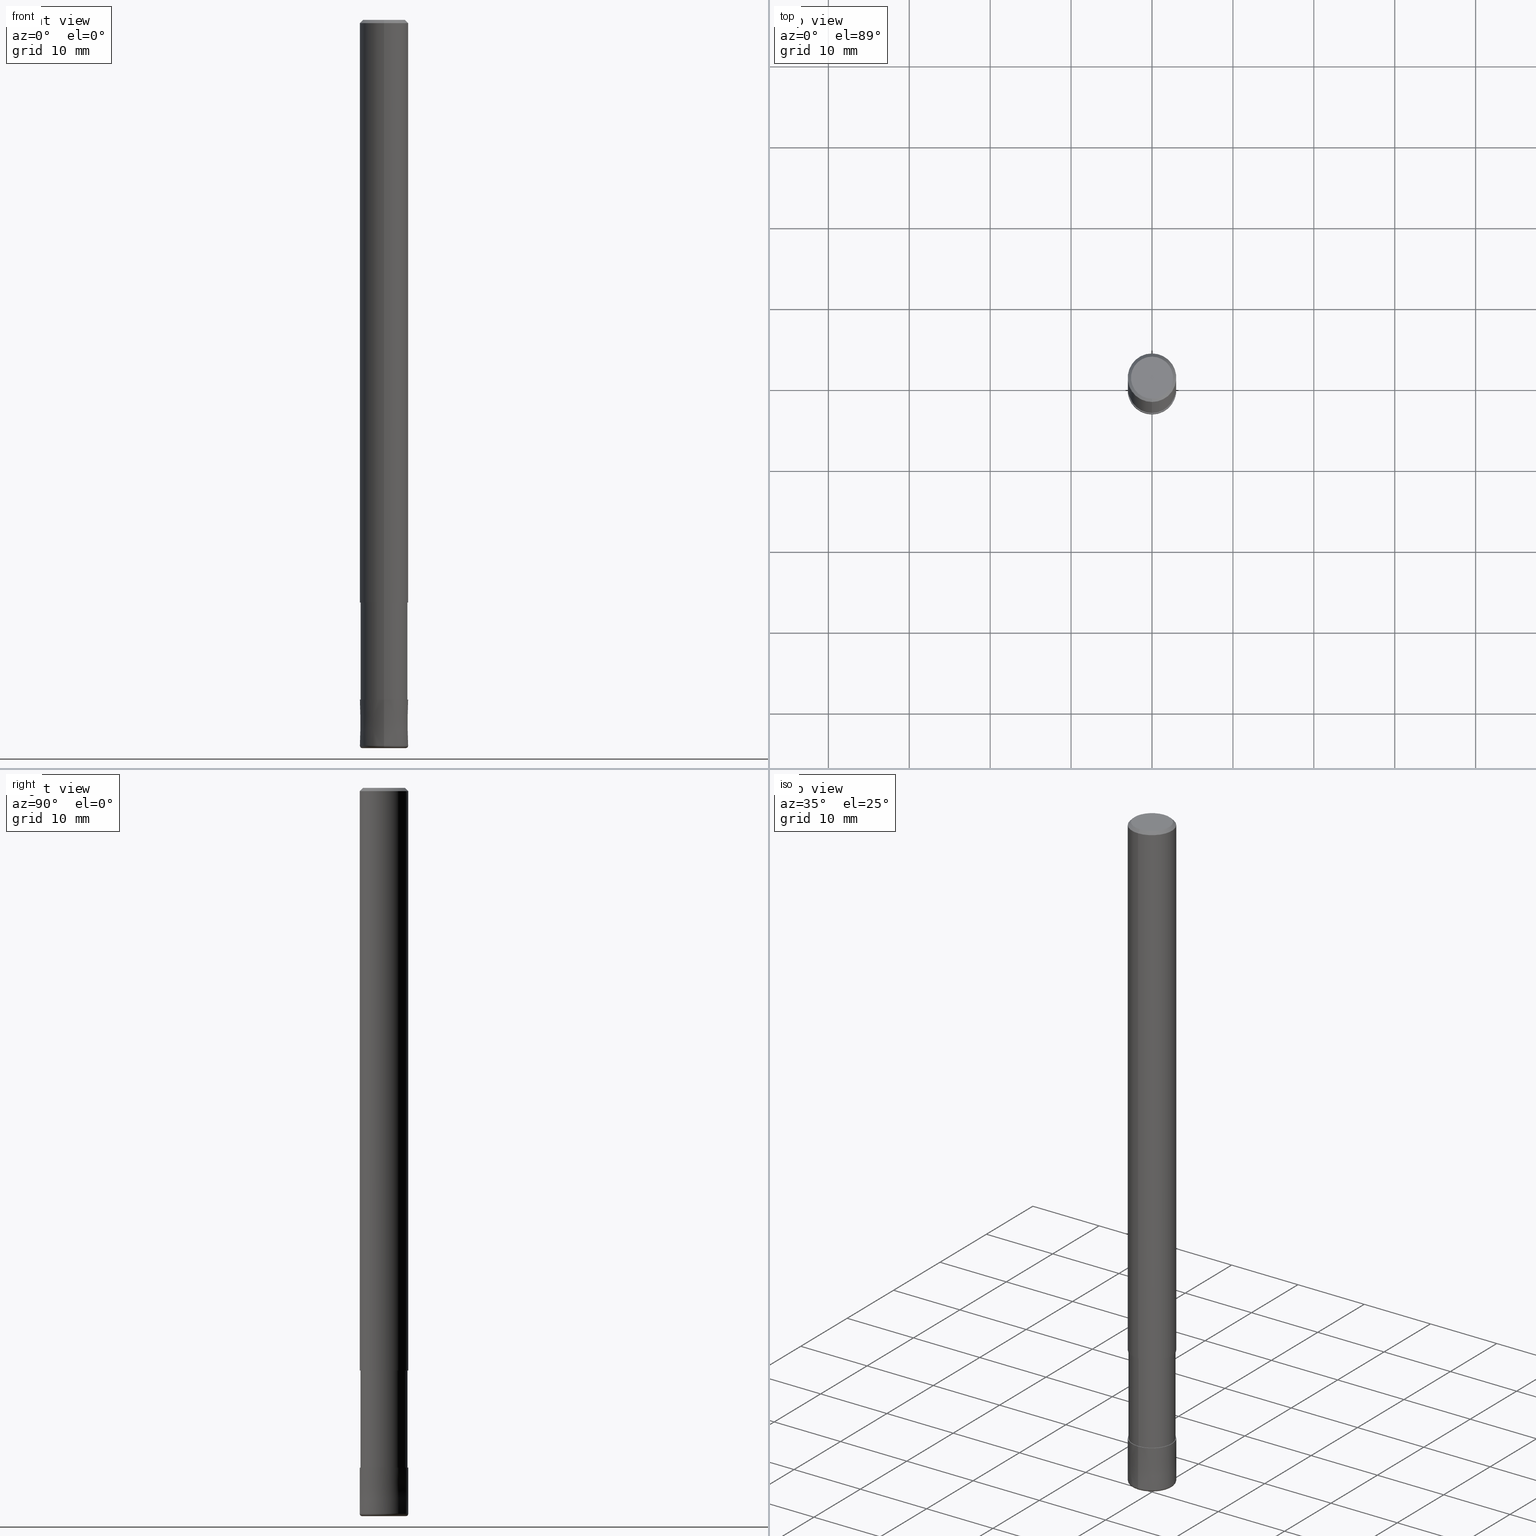
[diagram: canonical four-view strip — front | top / right | iso, engineering-drawing reading convention]
A machine part, canonical four-view strip (front | top / right | iso — engineering-drawing reading convention). The complete STEP part file that produces these views, byte-faithful:
ISO-10303-21;
HEADER;
FILE_DESCRIPTION(('no description'),'unknown implementation level');
FILE_NAME('CRRS4060-03-18-Huellk.stp','  ',('CIMSOURCE GmbH'),('CADClick - KiM GmbH - www.kimweb.de'),'unknown preprocess','ACIS','unknown authorization');
FILE_SCHEMA(('automotive_design'));
ENDSEC;
DATA;
#1=MECHANICAL_DESIGN_GEOMETRIC_PRESENTATION_REPRESENTATION(' ',(#14,#15,#16,#17,#18,#19,#20,#21,#22,#23,#24,#25,#26,#27,#28,#29,#30,#31,#32,#33,#34,#35,#36,#37,#38,#39,#40,#41,#42,#43,#44,#45,#46,#47,#48,#49,#50,#51,#52,#53,#54,#55,#56,#57,#58,#59,#60,#61,#62,#63,#64,#65,#66,#67,#68,#69,#70,#71,#72),#10);
#2=PRODUCT_DEFINITION_CONTEXT('',#73,'design');
#3=APPLICATION_PROTOCOL_DEFINITION('INTERNATIONAL STANDARD','automotive_design',1994,#73);
#4=PRODUCT_CATEGORY_RELATIONSHIP('NONE','NONE',#74,#75);
#5=SHAPE_DEFINITION_REPRESENTATION(#76,#77);
#6=PRODUCT_DEFINITION_CONTEXT('',#78,'design');
#7=APPLICATION_PROTOCOL_DEFINITION('INTERNATIONAL STANDARD','automotive_design',1994,#78);
#8=PRODUCT_CATEGORY_RELATIONSHIP('NONE','NONE',#79,#80);
#9=SHAPE_DEFINITION_REPRESENTATION(#81,#82);
#10= (GEOMETRIC_REPRESENTATION_CONTEXT(3)GLOBAL_UNCERTAINTY_ASSIGNED_CONTEXT((#85))GLOBAL_UNIT_ASSIGNED_CONTEXT((#87,#88,#89))REPRESENTATION_CONTEXT('NONE','WORKSPACE'));
#14=STYLED_ITEM('',(#91),#92);
#15=STYLED_ITEM('',(#93),#94);
#16=STYLED_ITEM('',(#95),#96);
#17=STYLED_ITEM('',(#97),#98);
#18=STYLED_ITEM('',(#99),#100);
#19=STYLED_ITEM('',(#101),#102);
#20=STYLED_ITEM('',(#103),#104);
#21=STYLED_ITEM('',(#105),#106);
#22=STYLED_ITEM('',(#107),#108);
#23=STYLED_ITEM('',(#109),#110);
#24=STYLED_ITEM('',(#111),#112);
#25=STYLED_ITEM('',(#113),#114);
#26=STYLED_ITEM('',(#115),#116);
#27=STYLED_ITEM('',(#117),#118);
#28=STYLED_ITEM('',(#119),#120);
#29=STYLED_ITEM('',(#121),#122);
#30=STYLED_ITEM('',(#123),#124);
#31=STYLED_ITEM('',(#125),#126);
#32=STYLED_ITEM('',(#127),#128);
#33=STYLED_ITEM('',(#129),#130);
#34=STYLED_ITEM('',(#131),#132);
#35=STYLED_ITEM('',(#133),#134);
#36=STYLED_ITEM('',(#135),#136);
#37=STYLED_ITEM('',(#137),#138);
#38=STYLED_ITEM('',(#139),#140);
#39=STYLED_ITEM('',(#141),#142);
#40=STYLED_ITEM('',(#143),#144);
#41=STYLED_ITEM('',(#145),#146);
#42=STYLED_ITEM('',(#147),#148);
#43=STYLED_ITEM('',(#149),#150);
#44=STYLED_ITEM('',(#151),#152);
#45=STYLED_ITEM('',(#153),#154);
#46=STYLED_ITEM('',(#155),#156);
#47=STYLED_ITEM('',(#157),#158);
#48=STYLED_ITEM('',(#159),#160);
#49=STYLED_ITEM('',(#161),#162);
#50=STYLED_ITEM('',(#163),#164);
#51=STYLED_ITEM('',(#165),#166);
#52=STYLED_ITEM('',(#167),#168);
#53=STYLED_ITEM('',(#169),#170);
#54=STYLED_ITEM('',(#171),#172);
#55=STYLED_ITEM('',(#173),#174);
#56=STYLED_ITEM('',(#175),#176);
#57=STYLED_ITEM('',(#177),#178);
#58=STYLED_ITEM('',(#179),#180);
#59=STYLED_ITEM('',(#181),#182);
#60=STYLED_ITEM('',(#183),#184);
#61=STYLED_ITEM('',(#185),#186);
#62=STYLED_ITEM('',(#187),#188);
#63=STYLED_ITEM('',(#189),#190);
#64=STYLED_ITEM('',(#191),#192);
#65=STYLED_ITEM('',(#193),#194);
#66=STYLED_ITEM('',(#195),#196);
#67=STYLED_ITEM('',(#197),#198);
#68=STYLED_ITEM('',(#199),#200);
#69=STYLED_ITEM('',(#201),#202);
#70=STYLED_ITEM('',(#203),#204);
#71=STYLED_ITEM('',(#205),#206);
#72=STYLED_ITEM('',(#207),#208);
#73=APPLICATION_CONTEXT(' ');
#74=PRODUCT_CATEGORY('part','NONE');
#75=PRODUCT_RELATED_PRODUCT_CATEGORY('detail',' ',(#209));
#76=PRODUCT_DEFINITION_SHAPE('NONE','NONE',#210);
#77=ADVANCED_BREP_SHAPE_REPRESENTATION('1',(#92,#211),#10);
#78=APPLICATION_CONTEXT(' ');
#79=PRODUCT_CATEGORY('part','NONE');
#80=PRODUCT_RELATED_PRODUCT_CATEGORY('detail',' ',(#212));
#81=PRODUCT_DEFINITION_SHAPE('NONE','NONE',#213);
#82=ADVANCED_BREP_SHAPE_REPRESENTATION('2',(#194,#214),#10);
#85=UNCERTAINTY_MEASURE_WITH_UNIT(LENGTH_MEASURE(1.0E-006),#87,'','');
#87= (CONVERSION_BASED_UNIT('MILLIMETRE',#217)LENGTH_UNIT()NAMED_UNIT(#220));
#88= (NAMED_UNIT(#222)PLANE_ANGLE_UNIT()SI_UNIT($,.RADIAN.));
#89= (NAMED_UNIT(#222)SOLID_ANGLE_UNIT()SI_UNIT($,.STERADIAN.));
#91=PRESENTATION_STYLE_ASSIGNMENT((#228));
#92=MANIFOLD_SOLID_BREP('1',#229);
#93=PRESENTATION_STYLE_ASSIGNMENT((#230));
#94=EDGE_CURVE('',#104,#192,#231,.T.);
#95=PRESENTATION_STYLE_ASSIGNMENT((#232));
#96=VERTEX_POINT('',#233);
#97=PRESENTATION_STYLE_ASSIGNMENT((#234));
#98=ADVANCED_FACE('',(#235),#236,.T.);
#99=PRESENTATION_STYLE_ASSIGNMENT((#237));
#100=EDGE_CURVE('',#206,#144,#238,.T.);
#101=PRESENTATION_STYLE_ASSIGNMENT((#239));
#102=EDGE_CURVE('',#174,#164,#240,.T.);
#103=PRESENTATION_STYLE_ASSIGNMENT((#241));
#104=VERTEX_POINT('',#242);
#105=PRESENTATION_STYLE_ASSIGNMENT((#243));
#106=ADVANCED_FACE('',(#244),#245,.T.);
#107=PRESENTATION_STYLE_ASSIGNMENT((#246));
#108=ADVANCED_FACE('',(#247),#248,.T.);
#109=PRESENTATION_STYLE_ASSIGNMENT((#249));
#110=ADVANCED_FACE('',(#250,#251),#252,.T.);
#111=PRESENTATION_STYLE_ASSIGNMENT((#253));
#112=EDGE_CURVE('',#166,#186,#254,.T.);
#113=PRESENTATION_STYLE_ASSIGNMENT((#255));
#114=ADVANCED_FACE('',(#256),#257,.T.);
#115=PRESENTATION_STYLE_ASSIGNMENT((#258));
#116=EDGE_CURVE('',#164,#206,#259,.T.);
#117=PRESENTATION_STYLE_ASSIGNMENT((#260));
#118=ADVANCED_FACE('',(#261),#262,.T.);
#119=PRESENTATION_STYLE_ASSIGNMENT((#263));
#120=EDGE_CURVE('',#150,#104,#264,.T.);
#121=PRESENTATION_STYLE_ASSIGNMENT((#265));
#122=ADVANCED_FACE('',(#266),#267,.T.);
#123=PRESENTATION_STYLE_ASSIGNMENT((#268));
#124=ADVANCED_FACE('',(#269),#270,.T.);
#125=PRESENTATION_STYLE_ASSIGNMENT((#271));
#126=VERTEX_POINT('',#272);
#127=PRESENTATION_STYLE_ASSIGNMENT((#273));
#128=EDGE_CURVE('',#190,#158,#274,.T.);
#129=PRESENTATION_STYLE_ASSIGNMENT((#275));
#130=EDGE_CURVE('',#186,#166,#276,.T.);
#131=PRESENTATION_STYLE_ASSIGNMENT((#277));
#132=EDGE_CURVE('',#188,#192,#278,.T.);
#133=PRESENTATION_STYLE_ASSIGNMENT((#279));
#134=EDGE_CURVE('',#140,#166,#280,.T.);
#135=PRESENTATION_STYLE_ASSIGNMENT((#281));
#136=EDGE_CURVE('',#164,#174,#282,.T.);
#137=PRESENTATION_STYLE_ASSIGNMENT((#283));
#138=EDGE_CURVE('',#202,#96,#284,.T.);
#139=PRESENTATION_STYLE_ASSIGNMENT((#285));
#140=VERTEX_POINT('',#286);
#141=PRESENTATION_STYLE_ASSIGNMENT((#287));
#142=EDGE_CURVE('',#104,#150,#288,.T.);
#143=PRESENTATION_STYLE_ASSIGNMENT((#289));
#144=VERTEX_POINT('',#290);
#145=PRESENTATION_STYLE_ASSIGNMENT((#291));
#146=EDGE_CURVE('',#144,#190,#292,.T.);
#147=PRESENTATION_STYLE_ASSIGNMENT((#293));
#148=EDGE_CURVE('',#202,#140,#294,.T.);
#149=PRESENTATION_STYLE_ASSIGNMENT((#295));
#150=VERTEX_POINT('',#296);
#151=PRESENTATION_STYLE_ASSIGNMENT((#297));
#152=EDGE_CURVE('',#158,#190,#298,.T.);
#153=PRESENTATION_STYLE_ASSIGNMENT((#299));
#154=EDGE_CURVE('',#96,#202,#300,.T.);
#155=PRESENTATION_STYLE_ASSIGNMENT((#301));
#156=ADVANCED_FACE('',(#302),#303,.T.);
#157=PRESENTATION_STYLE_ASSIGNMENT((#304));
#158=VERTEX_POINT('',#305);
#159=PRESENTATION_STYLE_ASSIGNMENT((#306));
#160=ADVANCED_FACE('',(#307),#308,.T.);
#161=PRESENTATION_STYLE_ASSIGNMENT((#309));
#162=ADVANCED_FACE('',(#310),#311,.T.);
#163=PRESENTATION_STYLE_ASSIGNMENT((#312));
#164=VERTEX_POINT('',#313);
#165=PRESENTATION_STYLE_ASSIGNMENT((#314));
#166=VERTEX_POINT('',#315);
#167=PRESENTATION_STYLE_ASSIGNMENT((#316));
#168=ADVANCED_FACE('',(#317),#318,.T.);
#169=PRESENTATION_STYLE_ASSIGNMENT((#319));
#170=EDGE_CURVE('',#144,#206,#320,.T.);
#171=PRESENTATION_STYLE_ASSIGNMENT((#321));
#172=EDGE_CURVE('',#158,#206,#322,.T.);
#173=PRESENTATION_STYLE_ASSIGNMENT((#323));
#174=VERTEX_POINT('',#324);
#175=PRESENTATION_STYLE_ASSIGNMENT((#325));
#176=EDGE_CURVE('',#188,#150,#326,.T.);
#177=PRESENTATION_STYLE_ASSIGNMENT((#327));
#178=EDGE_CURVE('',#126,#140,#328,.T.);
#179=PRESENTATION_STYLE_ASSIGNMENT((#329));
#180=EDGE_CURVE('',#192,#188,#330,.T.);
#181=PRESENTATION_STYLE_ASSIGNMENT((#331));
#182=ADVANCED_FACE('',(#332),#333,.T.);
#183=PRESENTATION_STYLE_ASSIGNMENT((#334));
#184=ADVANCED_FACE('',(#335),#336,.T.);
#185=PRESENTATION_STYLE_ASSIGNMENT((#337));
#186=VERTEX_POINT('',#338);
#187=PRESENTATION_STYLE_ASSIGNMENT((#339));
#188=VERTEX_POINT('',#340);
#189=PRESENTATION_STYLE_ASSIGNMENT((#341));
#190=VERTEX_POINT('',#342);
#191=PRESENTATION_STYLE_ASSIGNMENT((#343));
#192=VERTEX_POINT('',#344);
#193=PRESENTATION_STYLE_ASSIGNMENT((#345));
#194=MANIFOLD_SOLID_BREP('2',#346);
#195=PRESENTATION_STYLE_ASSIGNMENT((#347));
#196=EDGE_CURVE('',#144,#174,#348,.T.);
#197=PRESENTATION_STYLE_ASSIGNMENT((#349));
#198=EDGE_CURVE('',#140,#126,#350,.T.);
#199=PRESENTATION_STYLE_ASSIGNMENT((#351));
#200=EDGE_CURVE('',#186,#126,#352,.T.);
#201=PRESENTATION_STYLE_ASSIGNMENT((#353));
#202=VERTEX_POINT('',#354);
#203=PRESENTATION_STYLE_ASSIGNMENT((#355));
#204=EDGE_CURVE('',#126,#96,#356,.T.);
#205=PRESENTATION_STYLE_ASSIGNMENT((#357));
#206=VERTEX_POINT('',#358);
#207=PRESENTATION_STYLE_ASSIGNMENT((#359));
#208=ADVANCED_FACE('',(#360),#361,.T.);
#209=PRODUCT('1','1','PART-1-DESC',(#362));
#210=PRODUCT_DEFINITION('NONE','NONE',#363,#2);
#211=AXIS2_PLACEMENT_3D('',#364,#365,#366);
#212=PRODUCT('2','2','PART-2-DESC',(#367));
#213=PRODUCT_DEFINITION('NONE','NONE',#368,#6);
#214=AXIS2_PLACEMENT_3D('',#369,#370,#371);
#217=LENGTH_MEASURE_WITH_UNIT(LENGTH_MEASURE(1.0),#372);
#220=DIMENSIONAL_EXPONENTS(1.0,0.0,0.0,0.0,0.0,0.0,0.0);
#222=DIMENSIONAL_EXPONENTS(0.0,0.0,0.0,0.0,0.0,0.0,0.0);
#228=SURFACE_STYLE_USAGE(.BOTH.,#373);
#229=CLOSED_SHELL('',(#162,#106,#184,#110,#124,#156,#118,#114,#182));
#230=CURVE_STYLE('',#374,POSITIVE_LENGTH_MEASURE(1.0E-006),#375);
#231=LINE('',#376,#377);
#232=POINT_STYLE(' ',#378,POSITIVE_LENGTH_MEASURE(1.0E-006),#379);
#233=CARTESIAN_POINT('',(0.0,3.0,-72.0));
#234=SURFACE_STYLE_USAGE(.BOTH.,#380);
#235=FACE_OUTER_BOUND('',#381,.T.);
#236=PLANE('',#382);
#237=CURVE_STYLE('',#383,POSITIVE_LENGTH_MEASURE(1.0E-006),#384);
#238=CIRCLE('',#385,3.0);
#239=CURVE_STYLE('',#386,POSITIVE_LENGTH_MEASURE(1.0E-006),#387);
#240=CIRCLE('',#388,2.9999);
#241=POINT_STYLE(' ',#389,POSITIVE_LENGTH_MEASURE(1.0E-006),#390);
#242=CARTESIAN_POINT('',(0.0,2.90995,-72.0));
#243=SURFACE_STYLE_USAGE(.BOTH.,#391);
#244=FACE_OUTER_BOUND('',#392,.T.);
#245=CYLINDRICAL_SURFACE('',#393,3.0);
#246=SURFACE_STYLE_USAGE(.BOTH.,#394);
#247=FACE_OUTER_BOUND('',#395,.T.);
#248=PLANE('',#396);
#249=SURFACE_STYLE_USAGE(.BOTH.,#397);
#250=FACE_OUTER_BOUND('',#398,.T.);
#251=FACE_BOUND('',#399,.T.);
#252=PLANE('',#400);
#253=CURVE_STYLE('',#401,POSITIVE_LENGTH_MEASURE(1.0E-006),#402);
#254=CIRCLE('',#403,2.6);
#255=SURFACE_STYLE_USAGE(.BOTH.,#404);
#256=FACE_OUTER_BOUND('',#405,.T.);
#257=CYLINDRICAL_SURFACE('',#406,2.90995);
#258=CURVE_STYLE('',#407,POSITIVE_LENGTH_MEASURE(1.0E-006),#408);
#259=LINE('',#409,#410);
#260=SURFACE_STYLE_USAGE(.BOTH.,#411);
#261=FACE_OUTER_BOUND('',#412,.T.);
#262=CYLINDRICAL_SURFACE('',#413,3.0);
#263=CURVE_STYLE('',#414,POSITIVE_LENGTH_MEASURE(1.0E-006),#415);
#264=CIRCLE('',#416,2.90995);
#265=SURFACE_STYLE_USAGE(.BOTH.,#417);
#266=FACE_OUTER_BOUND('',#418,.T.);
#267=CONICAL_SURFACE('',#419,2.99995,1.75438596473599E-005);
#268=SURFACE_STYLE_USAGE(.BOTH.,#420);
#269=FACE_OUTER_BOUND('',#421,.T.);
#270=PLANE('',#422);
#271=POINT_STYLE(' ',#423,POSITIVE_LENGTH_MEASURE(1.0E-006),#424);
#272=CARTESIAN_POINT('',(0.0,3.0,-0.400000000000006));
#273=CURVE_STYLE('',#425,POSITIVE_LENGTH_MEASURE(1.0E-006),#426);
#274=CIRCLE('',#427,2.7);
#275=CURVE_STYLE('',#428,POSITIVE_LENGTH_MEASURE(1.0E-006),#429);
#276=CIRCLE('',#430,2.6);
#277=CURVE_STYLE('',#431,POSITIVE_LENGTH_MEASURE(1.0E-006),#432);
#278=CIRCLE('',#433,2.90995);
#279=CURVE_STYLE('',#434,POSITIVE_LENGTH_MEASURE(1.0E-006),#435);
#280=LINE('',#436,#437);
#281=CURVE_STYLE('',#438,POSITIVE_LENGTH_MEASURE(1.0E-006),#439);
#282=CIRCLE('',#440,2.9999);
#283=CURVE_STYLE('',#441,POSITIVE_LENGTH_MEASURE(1.0E-006),#442);
#284=CIRCLE('',#443,3.0);
#285=POINT_STYLE(' ',#444,POSITIVE_LENGTH_MEASURE(1.0E-006),#445);
#286=CARTESIAN_POINT('',(3.67381906146713E-016,-3.0,-0.400000000000006));
#287=CURVE_STYLE('',#446,POSITIVE_LENGTH_MEASURE(1.0E-006),#447);
#288=CIRCLE('',#448,2.90995);
#289=POINT_STYLE(' ',#449,POSITIVE_LENGTH_MEASURE(1.0E-006),#450);
#290=CARTESIAN_POINT('',(3.67381906146713E-016,-3.0,-89.7));
#291=CURVE_STYLE('',#451,POSITIVE_LENGTH_MEASURE(1.0E-006),#452);
#292=CIRCLE('',#453,0.300000000000002);
#293=CURVE_STYLE('',#454,POSITIVE_LENGTH_MEASURE(1.0E-006),#455);
#294=LINE('',#456,#457);
#295=POINT_STYLE(' ',#458,POSITIVE_LENGTH_MEASURE(1.0E-006),#459);
#296=CARTESIAN_POINT('',(3.56354325930543E-016,-2.90995,-72.0));
#297=CURVE_STYLE('',#460,POSITIVE_LENGTH_MEASURE(1.0E-006),#461);
#298=CIRCLE('',#462,2.7);
#299=CURVE_STYLE('',#463,POSITIVE_LENGTH_MEASURE(1.0E-006),#464);
#300=CIRCLE('',#465,3.0);
#301=SURFACE_STYLE_USAGE(.BOTH.,#466);
#302=FACE_OUTER_BOUND('',#467,.T.);
#303=CONICAL_SURFACE('',#468,2.8,0.785398163397441);
#304=POINT_STYLE(' ',#469,POSITIVE_LENGTH_MEASURE(1.0E-006),#470);
#305=CARTESIAN_POINT('',(0.0,2.7,-90.0));
#306=SURFACE_STYLE_USAGE(.BOTH.,#471);
#307=FACE_OUTER_BOUND('',#472,.T.);
#308=TOROIDAL_SURFACE('',#473,2.7,0.300000000000002);
#309=SURFACE_STYLE_USAGE(.BOTH.,#474);
#310=FACE_OUTER_BOUND('',#475,.T.);
#311=CYLINDRICAL_SURFACE('',#476,2.90995);
#312=POINT_STYLE(' ',#477,POSITIVE_LENGTH_MEASURE(1.0E-006),#478);
#313=CARTESIAN_POINT('',(0.0,2.9999,-84.0));
#314=POINT_STYLE(' ',#479,POSITIVE_LENGTH_MEASURE(1.0E-006),#480);
#315=CARTESIAN_POINT('',(3.18397651993818E-016,-2.6,0.0));
#316=SURFACE_STYLE_USAGE(.BOTH.,#481);
#317=FACE_OUTER_BOUND('',#482,.T.);
#318=CONICAL_SURFACE('',#483,2.99995,1.75438596473599E-005);
#319=CURVE_STYLE('',#484,POSITIVE_LENGTH_MEASURE(1.0E-006),#485);
#320=CIRCLE('',#486,3.0);
#321=CURVE_STYLE('',#487,POSITIVE_LENGTH_MEASURE(1.0E-006),#488);
#322=CIRCLE('',#489,0.300000000000002);
#323=POINT_STYLE(' ',#490,POSITIVE_LENGTH_MEASURE(1.0E-006),#491);
#324=CARTESIAN_POINT('',(3.67369660083175E-016,-2.9999,-84.0));
#325=CURVE_STYLE('',#492,POSITIVE_LENGTH_MEASURE(1.0E-006),#493);
#326=LINE('',#494,#495);
#327=CURVE_STYLE('',#496,POSITIVE_LENGTH_MEASURE(1.0E-006),#497);
#328=CIRCLE('',#498,3.0);
#329=CURVE_STYLE('',#499,POSITIVE_LENGTH_MEASURE(1.0E-006),#500);
#330=CIRCLE('',#501,2.90995);
#331=SURFACE_STYLE_USAGE(.BOTH.,#502);
#332=FACE_OUTER_BOUND('',#503,.T.);
#333=PLANE('',#504);
#334=SURFACE_STYLE_USAGE(.BOTH.,#505);
#335=FACE_OUTER_BOUND('',#506,.T.);
#336=CONICAL_SURFACE('',#507,2.8,0.785398163397441);
#337=POINT_STYLE(' ',#508,POSITIVE_LENGTH_MEASURE(1.0E-006),#509);
#338=CARTESIAN_POINT('',(0.0,2.6,0.0));
#339=POINT_STYLE(' ',#510,POSITIVE_LENGTH_MEASURE(1.0E-006),#511);
#340=CARTESIAN_POINT('',(3.56354325930543E-016,-2.90995,-84.0));
#341=POINT_STYLE(' ',#512,POSITIVE_LENGTH_MEASURE(1.0E-006),#513);
#342=CARTESIAN_POINT('',(3.30643715532042E-016,-2.7,-90.0));
#343=POINT_STYLE(' ',#514,POSITIVE_LENGTH_MEASURE(1.0E-006),#515);
#344=CARTESIAN_POINT('',(0.0,2.90995,-84.0));
#345=SURFACE_STYLE_USAGE(.BOTH.,#516);
#346=CLOSED_SHELL('',(#208,#168,#98,#122,#160,#108));
#347=CURVE_STYLE('',#517,POSITIVE_LENGTH_MEASURE(1.0E-006),#518);
#348=LINE('',#519,#520);
#349=CURVE_STYLE('',#521,POSITIVE_LENGTH_MEASURE(1.0E-006),#522);
#350=CIRCLE('',#523,3.0);
#351=CURVE_STYLE('',#524,POSITIVE_LENGTH_MEASURE(1.0E-006),#525);
#352=LINE('',#526,#527);
#353=POINT_STYLE(' ',#528,POSITIVE_LENGTH_MEASURE(1.0E-006),#529);
#354=CARTESIAN_POINT('',(3.67381906146713E-016,-3.0,-72.0));
#355=CURVE_STYLE('',#530,POSITIVE_LENGTH_MEASURE(1.0E-006),#531);
#356=LINE('',#532,#533);
#357=POINT_STYLE(' ',#534,POSITIVE_LENGTH_MEASURE(1.0E-006),#535);
#358=CARTESIAN_POINT('',(0.0,3.0,-89.7));
#359=SURFACE_STYLE_USAGE(.BOTH.,#536);
#360=FACE_OUTER_BOUND('',#537,.T.);
#361=TOROIDAL_SURFACE('',#538,2.7,0.300000000000002);
#362=PRODUCT_CONTEXT('',#73,'mechanical');
#363=PRODUCT_DEFINITION_FORMATION_WITH_SPECIFIED_SOURCE(' ','NONE',#209,.NOT_KNOWN.);
#364=CARTESIAN_POINT('',(0.0,0.0,0.0));
#365=DIRECTION('',(0.0,0.0,1.0));
#366=DIRECTION('',(1.0,0.0,0.0));
#367=PRODUCT_CONTEXT('',#78,'mechanical');
#368=PRODUCT_DEFINITION_FORMATION_WITH_SPECIFIED_SOURCE(' ','NONE',#212,.NOT_KNOWN.);
#369=CARTESIAN_POINT('',(0.0,0.0,0.0));
#370=DIRECTION('',(0.0,0.0,1.0));
#371=DIRECTION('',(1.0,0.0,0.0));
#372= (NAMED_UNIT(#220)LENGTH_UNIT()SI_UNIT(.MILLI.,.METRE.));
#373=SURFACE_SIDE_STYLE('',(#540));
#374=DRAUGHTING_PRE_DEFINED_CURVE_FONT('continuous');
#375=COLOUR_RGB('',0.498039215803146,0.498039215803146,0.498039215803146);
#376=CARTESIAN_POINT('',(-3.56354325930543E-016,2.90995,-78.0));
#377=VECTOR('',#541,1.0);
#378=PRE_DEFINED_MARKER('');
#379=COLOUR_RGB('',0.498039215803146,0.498039215803146,0.498039215803146);
#380=SURFACE_SIDE_STYLE('',(#542));
#381=EDGE_LOOP('',(#543,#544));
#382=AXIS2_PLACEMENT_3D('',#545,#546,#547);
#383=DRAUGHTING_PRE_DEFINED_CURVE_FONT('continuous');
#384=COLOUR_RGB('',0.800000011920929,0.800000011920929,0.800000011920929);
#385=AXIS2_PLACEMENT_3D('',#548,#549,#550);
#386=DRAUGHTING_PRE_DEFINED_CURVE_FONT('continuous');
#387=COLOUR_RGB('',0.800000011920929,0.800000011920929,0.800000011920929);
#388=AXIS2_PLACEMENT_3D('',#551,#552,#553);
#389=PRE_DEFINED_MARKER('');
#390=COLOUR_RGB('',0.498039215803146,0.498039215803146,0.498039215803146);
#391=SURFACE_SIDE_STYLE('',(#554));
#392=EDGE_LOOP('',(#555,#556,#557,#558));
#393=AXIS2_PLACEMENT_3D('',#559,#560,#561);
#394=SURFACE_SIDE_STYLE('',(#562));
#395=EDGE_LOOP('',(#563,#564));
#396=AXIS2_PLACEMENT_3D('',#565,#566,#567);
#397=SURFACE_SIDE_STYLE('',(#568));
#398=EDGE_LOOP('',(#569,#570));
#399=EDGE_LOOP('',(#571,#572));
#400=AXIS2_PLACEMENT_3D('',#573,#574,#575);
#401=DRAUGHTING_PRE_DEFINED_CURVE_FONT('continuous');
#402=COLOUR_RGB('',0.498039215803146,0.498039215803146,0.498039215803146);
#403=AXIS2_PLACEMENT_3D('',#576,#577,#578);
#404=SURFACE_SIDE_STYLE('',(#579));
#405=EDGE_LOOP('',(#580,#581,#582,#583));
#406=AXIS2_PLACEMENT_3D('',#584,#585,#586);
#407=DRAUGHTING_PRE_DEFINED_CURVE_FONT('continuous');
#408=COLOUR_RGB('',0.800000011920929,0.800000011920929,0.800000011920929);
#409=CARTESIAN_POINT('',(-3.67375783114944E-016,2.99995,-86.85));
#410=VECTOR('',#587,1.0);
#411=SURFACE_SIDE_STYLE('',(#588));
#412=EDGE_LOOP('',(#589,#590,#591,#592));
#413=AXIS2_PLACEMENT_3D('',#593,#594,#595);
#414=DRAUGHTING_PRE_DEFINED_CURVE_FONT('continuous');
#415=COLOUR_RGB('',0.498039215803146,0.498039215803146,0.498039215803146);
#416=AXIS2_PLACEMENT_3D('',#596,#597,#598);
#417=SURFACE_SIDE_STYLE('',(#599));
#418=EDGE_LOOP('',(#600,#601,#602,#603));
#419=AXIS2_PLACEMENT_3D('',#604,#605,#606);
#420=SURFACE_SIDE_STYLE('',(#607));
#421=EDGE_LOOP('',(#608,#609));
#422=AXIS2_PLACEMENT_3D('',#610,#611,#612);
#423=PRE_DEFINED_MARKER('');
#424=COLOUR_RGB('',0.498039215803146,0.498039215803146,0.498039215803146);
#425=DRAUGHTING_PRE_DEFINED_CURVE_FONT('continuous');
#426=COLOUR_RGB('',0.800000011920929,0.800000011920929,0.800000011920929);
#427=AXIS2_PLACEMENT_3D('',#613,#614,#615);
#428=DRAUGHTING_PRE_DEFINED_CURVE_FONT('continuous');
#429=COLOUR_RGB('',0.498039215803146,0.498039215803146,0.498039215803146);
#430=AXIS2_PLACEMENT_3D('',#616,#617,#618);
#431=DRAUGHTING_PRE_DEFINED_CURVE_FONT('continuous');
#432=COLOUR_RGB('',0.498039215803146,0.498039215803146,0.498039215803146);
#433=AXIS2_PLACEMENT_3D('',#619,#620,#621);
#434=DRAUGHTING_PRE_DEFINED_CURVE_FONT('continuous');
#435=COLOUR_RGB('',0.498039215803146,0.498039215803146,0.498039215803146);
#436=CARTESIAN_POINT('',(3.42889779070266E-016,-2.8,-0.200000000000003));
#437=VECTOR('',#622,1.0);
#438=DRAUGHTING_PRE_DEFINED_CURVE_FONT('continuous');
#439=COLOUR_RGB('',0.800000011920929,0.800000011920929,0.800000011920929);
#440=AXIS2_PLACEMENT_3D('',#623,#624,#625);
#441=DRAUGHTING_PRE_DEFINED_CURVE_FONT('continuous');
#442=COLOUR_RGB('',0.498039215803146,0.498039215803146,0.498039215803146);
#443=AXIS2_PLACEMENT_3D('',#626,#627,#628);
#444=PRE_DEFINED_MARKER('');
#445=COLOUR_RGB('',0.498039215803146,0.498039215803146,0.498039215803146);
#446=DRAUGHTING_PRE_DEFINED_CURVE_FONT('continuous');
#447=COLOUR_RGB('',0.498039215803146,0.498039215803146,0.498039215803146);
#448=AXIS2_PLACEMENT_3D('',#629,#630,#631);
#449=PRE_DEFINED_MARKER('');
#450=COLOUR_RGB('',0.800000011920929,0.800000011920929,0.800000011920929);
#451=DRAUGHTING_PRE_DEFINED_CURVE_FONT('continuous');
#452=COLOUR_RGB('',0.800000011920929,0.800000011920929,0.800000011920929);
#453=AXIS2_PLACEMENT_3D('',#632,#633,#634);
#454=DRAUGHTING_PRE_DEFINED_CURVE_FONT('continuous');
#455=COLOUR_RGB('',0.498039215803146,0.498039215803146,0.498039215803146);
#456=CARTESIAN_POINT('',(3.67381906146713E-016,-3.0,-36.2));
#457=VECTOR('',#635,1.0);
#458=PRE_DEFINED_MARKER('');
#459=COLOUR_RGB('',0.498039215803146,0.498039215803146,0.498039215803146);
#460=DRAUGHTING_PRE_DEFINED_CURVE_FONT('continuous');
#461=COLOUR_RGB('',0.800000011920929,0.800000011920929,0.800000011920929);
#462=AXIS2_PLACEMENT_3D('',#636,#637,#638);
#463=DRAUGHTING_PRE_DEFINED_CURVE_FONT('continuous');
#464=COLOUR_RGB('',0.498039215803146,0.498039215803146,0.498039215803146);
#465=AXIS2_PLACEMENT_3D('',#639,#640,#641);
#466=SURFACE_SIDE_STYLE('',(#642));
#467=EDGE_LOOP('',(#643,#644,#645,#646));
#468=AXIS2_PLACEMENT_3D('',#647,#648,#649);
#469=PRE_DEFINED_MARKER('');
#470=COLOUR_RGB('',0.800000011920929,0.800000011920929,0.800000011920929);
#471=SURFACE_SIDE_STYLE('',(#650));
#472=EDGE_LOOP('',(#651,#652,#653,#654));
#473=AXIS2_PLACEMENT_3D('',#655,#656,#657);
#474=SURFACE_SIDE_STYLE('',(#658));
#475=EDGE_LOOP('',(#659,#660,#661,#662));
#476=AXIS2_PLACEMENT_3D('',#663,#664,#665);
#477=PRE_DEFINED_MARKER('');
#478=COLOUR_RGB('',0.800000011920929,0.800000011920929,0.800000011920929);
#479=PRE_DEFINED_MARKER('');
#480=COLOUR_RGB('',0.498039215803146,0.498039215803146,0.498039215803146);
#481=SURFACE_SIDE_STYLE('',(#666));
#482=EDGE_LOOP('',(#667,#668,#669,#670));
#483=AXIS2_PLACEMENT_3D('',#671,#672,#673);
#484=DRAUGHTING_PRE_DEFINED_CURVE_FONT('continuous');
#485=COLOUR_RGB('',0.800000011920929,0.800000011920929,0.800000011920929);
#486=AXIS2_PLACEMENT_3D('',#674,#675,#676);
#487=DRAUGHTING_PRE_DEFINED_CURVE_FONT('continuous');
#488=COLOUR_RGB('',0.800000011920929,0.800000011920929,0.800000011920929);
#489=AXIS2_PLACEMENT_3D('',#677,#678,#679);
#490=PRE_DEFINED_MARKER('');
#491=COLOUR_RGB('',0.800000011920929,0.800000011920929,0.800000011920929);
#492=DRAUGHTING_PRE_DEFINED_CURVE_FONT('continuous');
#493=COLOUR_RGB('',0.498039215803146,0.498039215803146,0.498039215803146);
#494=CARTESIAN_POINT('',(3.56354325930543E-016,-2.90995,-78.0));
#495=VECTOR('',#680,1.0);
#496=DRAUGHTING_PRE_DEFINED_CURVE_FONT('continuous');
#497=COLOUR_RGB('',0.498039215803146,0.498039215803146,0.498039215803146);
#498=AXIS2_PLACEMENT_3D('',#681,#682,#683);
#499=DRAUGHTING_PRE_DEFINED_CURVE_FONT('continuous');
#500=COLOUR_RGB('',0.498039215803146,0.498039215803146,0.498039215803146);
#501=AXIS2_PLACEMENT_3D('',#684,#685,#686);
#502=SURFACE_SIDE_STYLE('',(#687));
#503=EDGE_LOOP('',(#688,#689));
#504=AXIS2_PLACEMENT_3D('',#690,#691,#692);
#505=SURFACE_SIDE_STYLE('',(#693));
#506=EDGE_LOOP('',(#694,#695,#696,#697));
#507=AXIS2_PLACEMENT_3D('',#698,#699,#700);
#508=PRE_DEFINED_MARKER('');
#509=COLOUR_RGB('',0.498039215803146,0.498039215803146,0.498039215803146);
#510=PRE_DEFINED_MARKER('');
#511=COLOUR_RGB('',0.498039215803146,0.498039215803146,0.498039215803146);
#512=PRE_DEFINED_MARKER('');
#513=COLOUR_RGB('',0.800000011920929,0.800000011920929,0.800000011920929);
#514=PRE_DEFINED_MARKER('');
#515=COLOUR_RGB('',0.498039215803146,0.498039215803146,0.498039215803146);
#516=SURFACE_SIDE_STYLE('',(#701));
#517=DRAUGHTING_PRE_DEFINED_CURVE_FONT('continuous');
#518=COLOUR_RGB('',0.800000011920929,0.800000011920929,0.800000011920929);
#519=CARTESIAN_POINT('',(3.67375783114944E-016,-2.99995,-86.85));
#520=VECTOR('',#702,1.0);
#521=DRAUGHTING_PRE_DEFINED_CURVE_FONT('continuous');
#522=COLOUR_RGB('',0.498039215803146,0.498039215803146,0.498039215803146);
#523=AXIS2_PLACEMENT_3D('',#703,#704,#705);
#524=DRAUGHTING_PRE_DEFINED_CURVE_FONT('continuous');
#525=COLOUR_RGB('',0.498039215803146,0.498039215803146,0.498039215803146);
#526=CARTESIAN_POINT('',(-3.42889779070266E-016,2.8,-0.200000000000003));
#527=VECTOR('',#706,1.0);
#528=PRE_DEFINED_MARKER('');
#529=COLOUR_RGB('',0.498039215803146,0.498039215803146,0.498039215803146);
#530=DRAUGHTING_PRE_DEFINED_CURVE_FONT('continuous');
#531=COLOUR_RGB('',0.498039215803146,0.498039215803146,0.498039215803146);
#532=CARTESIAN_POINT('',(-3.67381906146713E-016,3.0,-36.2));
#533=VECTOR('',#707,1.0);
#534=PRE_DEFINED_MARKER('');
#535=COLOUR_RGB('',0.800000011920929,0.800000011920929,0.800000011920929);
#536=SURFACE_SIDE_STYLE('',(#708));
#537=EDGE_LOOP('',(#709,#710,#711,#712));
#538=AXIS2_PLACEMENT_3D('',#713,#714,#715);
#540=SURFACE_STYLE_FILL_AREA(#716);
#541=DIRECTION('',(0.0,0.0,-1.0));
#542=SURFACE_STYLE_FILL_AREA(#717);
#543=ORIENTED_EDGE('',*,*,#136,.F.);
#544=ORIENTED_EDGE('',*,*,#102,.F.);
#545=CARTESIAN_POINT('',(0.0,1.49995,-84.0));
#546=DIRECTION('',(-0.0,0.0,1.0));
#547=DIRECTION('',(0.0,-1.0,0.0));
#548=CARTESIAN_POINT('',(0.0,0.0,-89.7));
#549=DIRECTION('',(0.0,0.0,-1.0));
#550=DIRECTION('',(0.0,1.0,0.0));
#551=CARTESIAN_POINT('',(0.0,0.0,-84.0));
#552=DIRECTION('',(0.0,0.0,-1.0));
#553=DIRECTION('',(0.0,1.0,0.0));
#554=SURFACE_STYLE_FILL_AREA(#718);
#555=ORIENTED_EDGE('',*,*,#204,.F.);
#556=ORIENTED_EDGE('',*,*,#178,.T.);
#557=ORIENTED_EDGE('',*,*,#148,.F.);
#558=ORIENTED_EDGE('',*,*,#154,.F.);
#559=CARTESIAN_POINT('',(0.0,0.0,-36.2));
#560=DIRECTION('',(-0.0,-0.0,1.0));
#561=DIRECTION('',(0.0,1.0,0.0));
#562=SURFACE_STYLE_FILL_AREA(#719);
#563=ORIENTED_EDGE('',*,*,#152,.T.);
#564=ORIENTED_EDGE('',*,*,#128,.T.);
#565=CARTESIAN_POINT('',(0.0,1.35,-90.0));
#566=DIRECTION('',(0.0,0.0,-1.0));
#567=DIRECTION('',(0.0,1.0,0.0));
#568=SURFACE_STYLE_FILL_AREA(#720);
#569=ORIENTED_EDGE('',*,*,#154,.T.);
#570=ORIENTED_EDGE('',*,*,#138,.T.);
#571=ORIENTED_EDGE('',*,*,#142,.F.);
#572=ORIENTED_EDGE('',*,*,#120,.F.);
#573=CARTESIAN_POINT('',(0.0,1.5,-72.0));
#574=DIRECTION('',(0.0,0.0,-1.0));
#575=DIRECTION('',(0.0,1.0,0.0));
#576=CARTESIAN_POINT('',(0.0,0.0,0.0));
#577=DIRECTION('',(0.0,0.0,-1.0));
#578=DIRECTION('',(0.0,1.0,0.0));
#579=SURFACE_STYLE_FILL_AREA(#721);
#580=ORIENTED_EDGE('',*,*,#94,.T.);
#581=ORIENTED_EDGE('',*,*,#132,.F.);
#582=ORIENTED_EDGE('',*,*,#176,.T.);
#583=ORIENTED_EDGE('',*,*,#120,.T.);
#584=CARTESIAN_POINT('',(0.0,0.0,-78.0));
#585=DIRECTION('',(-0.0,-0.0,1.0));
#586=DIRECTION('',(0.0,1.0,0.0));
#587=DIRECTION('',(-2.14843219936228E-021,1.75438596464599E-005,-0.999999999846107));
#588=SURFACE_STYLE_FILL_AREA(#722);
#589=ORIENTED_EDGE('',*,*,#204,.T.);
#590=ORIENTED_EDGE('',*,*,#138,.F.);
#591=ORIENTED_EDGE('',*,*,#148,.T.);
#592=ORIENTED_EDGE('',*,*,#198,.T.);
#593=CARTESIAN_POINT('',(0.0,0.0,-36.2));
#594=DIRECTION('',(-0.0,-0.0,1.0));
#595=DIRECTION('',(0.0,1.0,0.0));
#596=CARTESIAN_POINT('',(0.0,0.0,-72.0));
#597=DIRECTION('',(0.0,0.0,-1.0));
#598=DIRECTION('',(0.0,1.0,0.0));
#599=SURFACE_STYLE_FILL_AREA(#723);
#600=ORIENTED_EDGE('',*,*,#116,.T.);
#601=ORIENTED_EDGE('',*,*,#170,.F.);
#602=ORIENTED_EDGE('',*,*,#196,.T.);
#603=ORIENTED_EDGE('',*,*,#102,.T.);
#604=CARTESIAN_POINT('',(0.0,0.0,-86.85));
#605=DIRECTION('',(0.0,-0.0,-1.0));
#606=DIRECTION('',(0.0,1.0,0.0));
#607=SURFACE_STYLE_FILL_AREA(#724);
#608=ORIENTED_EDGE('',*,*,#130,.F.);
#609=ORIENTED_EDGE('',*,*,#112,.F.);
#610=CARTESIAN_POINT('',(0.0,1.3,0.0));
#611=DIRECTION('',(-0.0,0.0,1.0));
#612=DIRECTION('',(0.0,-1.0,0.0));
#613=CARTESIAN_POINT('',(0.0,0.0,-90.0));
#614=DIRECTION('',(0.0,0.0,-1.0));
#615=DIRECTION('',(0.0,1.0,0.0));
#616=CARTESIAN_POINT('',(0.0,0.0,0.0));
#617=DIRECTION('',(0.0,0.0,-1.0));
#618=DIRECTION('',(0.0,1.0,0.0));
#619=CARTESIAN_POINT('',(0.0,0.0,-84.0));
#620=DIRECTION('',(0.0,0.0,-1.0));
#621=DIRECTION('',(0.0,1.0,0.0));
#622=DIRECTION('',(-8.65927457071929E-017,0.707106781186542,0.707106781186553));
#623=CARTESIAN_POINT('',(0.0,0.0,-84.0));
#624=DIRECTION('',(0.0,0.0,-1.0));
#625=DIRECTION('',(0.0,1.0,0.0));
#626=CARTESIAN_POINT('',(0.0,0.0,-72.0));
#627=DIRECTION('',(0.0,0.0,-1.0));
#628=DIRECTION('',(0.0,1.0,0.0));
#629=CARTESIAN_POINT('',(0.0,0.0,-72.0));
#630=DIRECTION('',(0.0,0.0,-1.0));
#631=DIRECTION('',(0.0,1.0,0.0));
#632=CARTESIAN_POINT('',(3.30643715532042E-016,-2.7,-89.7));
#633=DIRECTION('',(1.0,1.22460635382238E-016,0.0));
#634=DIRECTION('',(1.22460635382238E-016,-1.0,-0.0));
#635=DIRECTION('',(-0.0,-0.0,1.0));
#636=CARTESIAN_POINT('',(0.0,0.0,-90.0));
#637=DIRECTION('',(0.0,0.0,-1.0));
#638=DIRECTION('',(0.0,1.0,0.0));
#639=CARTESIAN_POINT('',(0.0,0.0,-72.0));
#640=DIRECTION('',(0.0,0.0,-1.0));
#641=DIRECTION('',(0.0,1.0,0.0));
#642=SURFACE_STYLE_FILL_AREA(#725);
#643=ORIENTED_EDGE('',*,*,#200,.T.);
#644=ORIENTED_EDGE('',*,*,#198,.F.);
#645=ORIENTED_EDGE('',*,*,#134,.T.);
#646=ORIENTED_EDGE('',*,*,#112,.T.);
#647=CARTESIAN_POINT('',(0.0,0.0,-0.200000000000003));
#648=DIRECTION('',(0.0,-0.0,-1.0));
#649=DIRECTION('',(0.0,1.0,0.0));
#650=SURFACE_STYLE_FILL_AREA(#726);
#651=ORIENTED_EDGE('',*,*,#146,.T.);
#652=ORIENTED_EDGE('',*,*,#152,.F.);
#653=ORIENTED_EDGE('',*,*,#172,.T.);
#654=ORIENTED_EDGE('',*,*,#100,.T.);
#655=CARTESIAN_POINT('',(0.0,0.0,-89.7));
#656=DIRECTION('',(0.0,0.0,-1.0));
#657=DIRECTION('',(0.0,-1.0,0.0));
#658=SURFACE_STYLE_FILL_AREA(#727);
#659=ORIENTED_EDGE('',*,*,#94,.F.);
#660=ORIENTED_EDGE('',*,*,#142,.T.);
#661=ORIENTED_EDGE('',*,*,#176,.F.);
#662=ORIENTED_EDGE('',*,*,#180,.F.);
#663=CARTESIAN_POINT('',(0.0,0.0,-78.0));
#664=DIRECTION('',(-0.0,-0.0,1.0));
#665=DIRECTION('',(0.0,1.0,0.0));
#666=SURFACE_STYLE_FILL_AREA(#728);
#667=ORIENTED_EDGE('',*,*,#116,.F.);
#668=ORIENTED_EDGE('',*,*,#136,.T.);
#669=ORIENTED_EDGE('',*,*,#196,.F.);
#670=ORIENTED_EDGE('',*,*,#100,.F.);
#671=CARTESIAN_POINT('',(0.0,0.0,-86.85));
#672=DIRECTION('',(0.0,-0.0,-1.0));
#673=DIRECTION('',(0.0,1.0,0.0));
#674=CARTESIAN_POINT('',(0.0,0.0,-89.7));
#675=DIRECTION('',(0.0,0.0,-1.0));
#676=DIRECTION('',(0.0,1.0,0.0));
#677=CARTESIAN_POINT('',(-3.30643715532042E-016,2.7,-89.7));
#678=DIRECTION('',(1.0,1.22460635382238E-016,0.0));
#679=DIRECTION('',(-1.22460635382238E-016,1.0,0.0));
#680=DIRECTION('',(-0.0,-0.0,1.0));
#681=CARTESIAN_POINT('',(0.0,0.0,-0.400000000000006));
#682=DIRECTION('',(0.0,0.0,-1.0));
#683=DIRECTION('',(0.0,1.0,0.0));
#684=CARTESIAN_POINT('',(0.0,0.0,-84.0));
#685=DIRECTION('',(0.0,0.0,-1.0));
#686=DIRECTION('',(0.0,1.0,0.0));
#687=SURFACE_STYLE_FILL_AREA(#729);
#688=ORIENTED_EDGE('',*,*,#180,.T.);
#689=ORIENTED_EDGE('',*,*,#132,.T.);
#690=CARTESIAN_POINT('',(0.0,1.454975,-84.0));
#691=DIRECTION('',(0.0,0.0,-1.0));
#692=DIRECTION('',(0.0,1.0,0.0));
#693=SURFACE_STYLE_FILL_AREA(#730);
#694=ORIENTED_EDGE('',*,*,#200,.F.);
#695=ORIENTED_EDGE('',*,*,#130,.T.);
#696=ORIENTED_EDGE('',*,*,#134,.F.);
#697=ORIENTED_EDGE('',*,*,#178,.F.);
#698=CARTESIAN_POINT('',(0.0,0.0,-0.200000000000003));
#699=DIRECTION('',(0.0,-0.0,-1.0));
#700=DIRECTION('',(0.0,1.0,0.0));
#701=SURFACE_STYLE_FILL_AREA(#731);
#702=DIRECTION('',(-2.14843219936229E-021,1.75438596464599E-005,0.999999999846107));
#703=CARTESIAN_POINT('',(0.0,0.0,-0.400000000000006));
#704=DIRECTION('',(0.0,0.0,-1.0));
#705=DIRECTION('',(0.0,1.0,0.0));
#706=DIRECTION('',(-8.65927457071929E-017,0.707106781186542,-0.707106781186553));
#707=DIRECTION('',(0.0,0.0,-1.0));
#708=SURFACE_STYLE_FILL_AREA(#732);
#709=ORIENTED_EDGE('',*,*,#146,.F.);
#710=ORIENTED_EDGE('',*,*,#170,.T.);
#711=ORIENTED_EDGE('',*,*,#172,.F.);
#712=ORIENTED_EDGE('',*,*,#128,.F.);
#713=CARTESIAN_POINT('',(0.0,0.0,-89.7));
#714=DIRECTION('',(0.0,0.0,-1.0));
#715=DIRECTION('',(0.0,-1.0,0.0));
#716=FILL_AREA_STYLE('',(#733));
#717=FILL_AREA_STYLE('',(#734));
#718=FILL_AREA_STYLE('',(#735));
#719=FILL_AREA_STYLE('',(#736));
#720=FILL_AREA_STYLE('',(#737));
#721=FILL_AREA_STYLE('',(#738));
#722=FILL_AREA_STYLE('',(#739));
#723=FILL_AREA_STYLE('',(#740));
#724=FILL_AREA_STYLE('',(#741));
#725=FILL_AREA_STYLE('',(#742));
#726=FILL_AREA_STYLE('',(#743));
#727=FILL_AREA_STYLE('',(#744));
#728=FILL_AREA_STYLE('',(#745));
#729=FILL_AREA_STYLE('',(#746));
#730=FILL_AREA_STYLE('',(#747));
#731=FILL_AREA_STYLE('',(#748));
#732=FILL_AREA_STYLE('',(#749));
#733=FILL_AREA_STYLE_COLOUR('',#750);
#734=FILL_AREA_STYLE_COLOUR('',#751);
#735=FILL_AREA_STYLE_COLOUR('',#752);
#736=FILL_AREA_STYLE_COLOUR('',#753);
#737=FILL_AREA_STYLE_COLOUR('',#754);
#738=FILL_AREA_STYLE_COLOUR('',#755);
#739=FILL_AREA_STYLE_COLOUR('',#756);
#740=FILL_AREA_STYLE_COLOUR('',#757);
#741=FILL_AREA_STYLE_COLOUR('',#758);
#742=FILL_AREA_STYLE_COLOUR('',#759);
#743=FILL_AREA_STYLE_COLOUR('',#760);
#744=FILL_AREA_STYLE_COLOUR('',#761);
#745=FILL_AREA_STYLE_COLOUR('',#762);
#746=FILL_AREA_STYLE_COLOUR('',#763);
#747=FILL_AREA_STYLE_COLOUR('',#764);
#748=FILL_AREA_STYLE_COLOUR('',#765);
#749=FILL_AREA_STYLE_COLOUR('',#766);
#750=COLOUR_RGB('',0.498039215803146,0.498039215803146,0.498039215803146);
#751=COLOUR_RGB('',0.800000011920929,0.800000011920929,0.800000011920929);
#752=COLOUR_RGB('',0.498039215803146,0.498039215803146,0.498039215803146);
#753=COLOUR_RGB('',0.800000011920929,0.800000011920929,0.800000011920929);
#754=COLOUR_RGB('',0.498039215803146,0.498039215803146,0.498039215803146);
#755=COLOUR_RGB('',0.498039215803146,0.498039215803146,0.498039215803146);
#756=COLOUR_RGB('',0.498039215803146,0.498039215803146,0.498039215803146);
#757=COLOUR_RGB('',0.800000011920929,0.800000011920929,0.800000011920929);
#758=COLOUR_RGB('',0.498039215803146,0.498039215803146,0.498039215803146);
#759=COLOUR_RGB('',0.498039215803146,0.498039215803146,0.498039215803146);
#760=COLOUR_RGB('',0.800000011920929,0.800000011920929,0.800000011920929);
#761=COLOUR_RGB('',0.498039215803146,0.498039215803146,0.498039215803146);
#762=COLOUR_RGB('',0.800000011920929,0.800000011920929,0.800000011920929);
#763=COLOUR_RGB('',0.498039215803146,0.498039215803146,0.498039215803146);
#764=COLOUR_RGB('',0.498039215803146,0.498039215803146,0.498039215803146);
#765=COLOUR_RGB('',0.800000011920929,0.800000011920929,0.800000011920929);
#766=COLOUR_RGB('',0.800000011920929,0.800000011920929,0.800000011920929);
#767=AXIS2_PLACEMENT_3D('PCS',#768,#769,#770);
#768=CARTESIAN_POINT('',(0.0,0.0,0.0));
#769=DIRECTION('',(0.0,0.0,1.0));
#770=DIRECTION('',(1.0,0.0,0.0));
#771=AXIS2_PLACEMENT_3D('CIP',#772,#773,#774);
#772=CARTESIAN_POINT('',(0.0,0.0,-90.0));
#773=DIRECTION('',(0.0,0.0,1.0));
#774=DIRECTION('',(1.0,0.0,0.0));
#775=AXIS2_PLACEMENT_3D('CRP',#776,#777,#778);
#776=CARTESIAN_POINT('',(-3.0,0.0,-90.0));
#777=DIRECTION('',(0.0,0.0,1.0));
#778=DIRECTION('',(1.0,0.0,0.0));
#779=AXIS2_PLACEMENT_3D('MCS',#780,#781,#782);
#780=CARTESIAN_POINT('',(0.0,0.0,-72.0));
#781=DIRECTION('',(0.0,0.0,1.0));
#782=DIRECTION('',(1.0,0.0,0.0));
#783=CONSTRUCTIVE_GEOMETRY_REPRESENTATION_RELATIONSHIP('coordinate systems',$,#77,#784);
#784=CONSTRUCTIVE_GEOMETRY_REPRESENTATION('coordinate systems',(#767,#771,#775,#779),#10);
ENDSEC;
END-ISO-10303-21;
